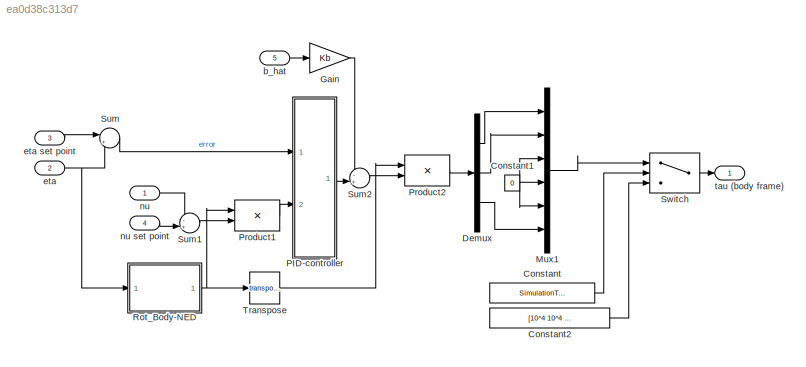
MODEL slx_ea0d38c313d7
KIND model
CONFIG AbsTol = auto
CONFIG EnableMultiTasking = off
CONFIG FixedStep = 0.1
CONFIG MaxStep = auto
CONFIG MinStep = auto
CONFIG RelTol = 1e-3
CONFIG SampleTimeConstraint = Unconstrained
CONFIG Solver = FixedStepAuto
CONFIG SolverName = FixedStepAuto
CONFIG StartTime = 0.0
CONFIG StopTime = 10.0
BLOCK [Constant] Constant
  Value = SimulationToRun ~= 4
BLOCK [Constant] Constant1
  Value = 0
BLOCK [Constant] Constant2
  Value = [10^4 10^4 0 0 0 10^4]
BLOCK [Demux] Demux
  DisplayOption = bar
  Outputs = 3
  Ports = [1, 3]
BLOCK [Gain] Gain
  Gain = Kb
  OutDataTypeStr = Inherit: Inherit via internal rule
  ParamDataTypeStr = Inherit: Inherit via internal rule
  SaturateOnIntegerOverflow = off
BLOCK [Mux] Mux1
  DisplayOption = bar
  Inputs = 6
  Ports = [6, 1]
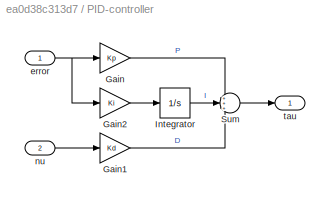
BLOCK [SubSystem] PID-controller
  Ports = [2, 1]
  RequestExecContextInheritance = off
BLOCK [Gain] PID-controller/Gain
  Gain = Kp
  OutDataTypeStr = Inherit: Inherit via internal rule
  ParamDataTypeStr = Inherit: Inherit via internal rule
  SaturateOnIntegerOverflow = off
BLOCK [Gain] PID-controller/Gain1
  Gain = Kd
  OutDataTypeStr = Inherit: Inherit via internal rule
  ParamDataTypeStr = Inherit: Inherit via internal rule
  SaturateOnIntegerOverflow = off
BLOCK [Gain] PID-controller/Gain2
  Gain = Ki
  OutDataTypeStr = Inherit: Inherit via internal rule
  ParamDataTypeStr = Inherit: Inherit via internal rule
  SaturateOnIntegerOverflow = off
BLOCK [Integrator] PID-controller/Integrator
  LimitOutput = on
  LowerSaturationLimit = -int_sat
  Ports = [1, 1]
  UpperSaturationLimit = int_sat
BLOCK [Sum] PID-controller/Sum
  IconShape = round
  InputSameDT = off
  Inputs = +++
  OutDataTypeStr = Inherit: Inherit via internal rule
  Ports = [3, 1]
  SaturateOnIntegerOverflow = off
BLOCK [Inport] PID-controller/error
  IconDisplay = Port number
BLOCK [Inport] PID-controller/nu
  IconDisplay = Port number
  Port = 2
BLOCK [Outport] PID-controller/tau
  IconDisplay = Port number
BLOCK [Product] Product1
  InputSameDT = off
  Multiplication = Matrix(*)
  OutDataTypeStr = Inherit: Inherit via internal rule
  Ports = [2, 1]
  RndMeth = Floor
  SaturateOnIntegerOverflow = off
BLOCK [Product] Product2
  InputSameDT = off
  Multiplication = Matrix(*)
  OutDataTypeStr = Inherit: Inherit via internal rule
  Ports = [2, 1]
  RndMeth = Floor
  SaturateOnIntegerOverflow = off
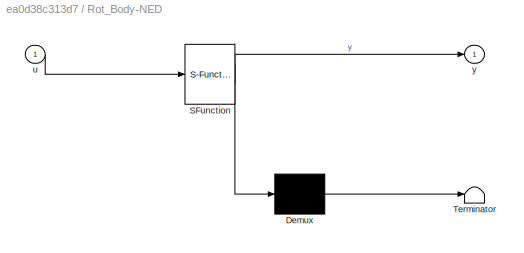
BLOCK [SubSystem] Rot_Body-NED
  ErrorFcn = Stateflow.Translate.translate
  PermitHierarchicalResolution = ExplicitOnly
  Ports = [1, 1]
  RequestExecContextInheritance = off
  SFBlockType = MATLAB Function
  TreatAsAtomicUnit = on
BLOCK [Demux] Rot_Body-NED/ Demux 
  Outputs = 1
  Ports = [1, 1]
BLOCK [S-Function] Rot_Body-NED/ SFunction 
  EnableBusSupport = on
  FunctionName = sf_sfun
  PortCounts = [1 2]
  Ports = [1, 2]
  SFcnIsStateOwnerBlock = off
  SFunctionDeploymentMode = off
  Tag = Stateflow S-Function DP_controller 1
BLOCK [Terminator] Rot_Body-NED/ Terminator 
BLOCK [Inport] Rot_Body-NED/u
  IconDisplay = Port number
BLOCK [Outport] Rot_Body-NED/y
  IconDisplay = Port number
BLOCK [Sum] Sum
  IconShape = round
  InputSameDT = off
  Inputs = |+-
  OutDataTypeStr = Inherit: Inherit via internal rule
  Ports = [2, 1]
  SaturateOnIntegerOverflow = off
BLOCK [Sum] Sum1
  IconShape = round
  InputSameDT = off
  Inputs = -+|
  OutDataTypeStr = Inherit: Inherit via internal rule
  Ports = [2, 1]
  SaturateOnIntegerOverflow = off
BLOCK [Sum] Sum2
  IconShape = round
  InputSameDT = off
  Inputs = -+|
  OutDataTypeStr = Inherit: Inherit via internal rule
  Ports = [2, 1]
  SaturateOnIntegerOverflow = off
BLOCK [Switch] Switch
  Criteria = u2 > Threshold
  InputSameDT = off
  SaturateOnIntegerOverflow = off
BLOCK [Math] Transpose
  Operator = transpose
  Ports = [1, 1]
BLOCK [Inport] b_hat
  IconDisplay = Port number
  Port = 5
  PortDimensions = 3
BLOCK [Inport] eta
  IconDisplay = Port number
  Port = 2
  PortDimensions = 3
BLOCK [Inport] eta set point
  IconDisplay = Port number
  Port = 3
  PortDimensions = 3
BLOCK [Inport] nu
  IconDisplay = Port number
  PortDimensions = 3
BLOCK [Inport] nu set point
  IconDisplay = Port number
  Port = 4
  PortDimensions = 3
BLOCK [Outport] tau (body frame)
  IconDisplay = Port number
  PortDimensions = 6
NET Constant1:1 -> Mux1:3, Mux1:4, Mux1:5
LINE Constant2:1 -> Switch:3
LINE Constant:1 -> Switch:2
LINE Demux:1 -> Mux1:1
LINE Demux:2 -> Mux1:2
LINE Demux:3 -> Mux1:6
LINE Gain:1 -> Sum2:1
LINE Mux1:1 -> Switch:1
LINE PID-controller/Gain1:1 -> PID-controller/Sum:3
LINE PID-controller/Gain2:1 -> PID-controller/Integrator:1
LINE PID-controller/Gain:1 -> PID-controller/Sum:1
LINE PID-controller/Integrator:1 -> PID-controller/Sum:2
LINE PID-controller/Sum:1 -> PID-controller/tau:1
NET PID-controller/error:1 -> PID-controller/Gain2:1, PID-controller/Gain:1
LINE PID-controller/nu:1 -> PID-controller/Gain1:1
LINE PID-controller:1 -> Sum2:2
LINE Product1:1 -> PID-controller:2
LINE Product2:1 -> Demux:1
NET Rot_Body-NED:1 -> Product1:1, Transpose:1
LINE Sum1:1 -> Product1:2
LINE Sum2:1 -> Product2:2
LINE Sum:1 -> PID-controller:1
LINE Switch:1 -> tau (body frame):1
LINE Transpose:1 -> Product2:1
LINE b_hat:1 -> Gain:1
LINE eta set point:1 -> Sum:1
NET eta:1 -> Rot_Body-NED:1, Sum:2
LINE nu set point:1 -> Sum1:2
LINE nu:1 -> Sum1:1
note: NET lines group one-source signal fan-out (src -> all destinations, sorted); 1:1 wires keep LINE
CHART Rot_Body-NED states=1 transitions=1
  STATE_LABEL 'eML_blk_kernel()'
  STATE_LABEL 'SCRIPT:\nfunction y = rot_zyx(u)\n% Rzyx: Available in the MSS-toolbox\ny = Rzyx(0, 0, u(3));\n'
